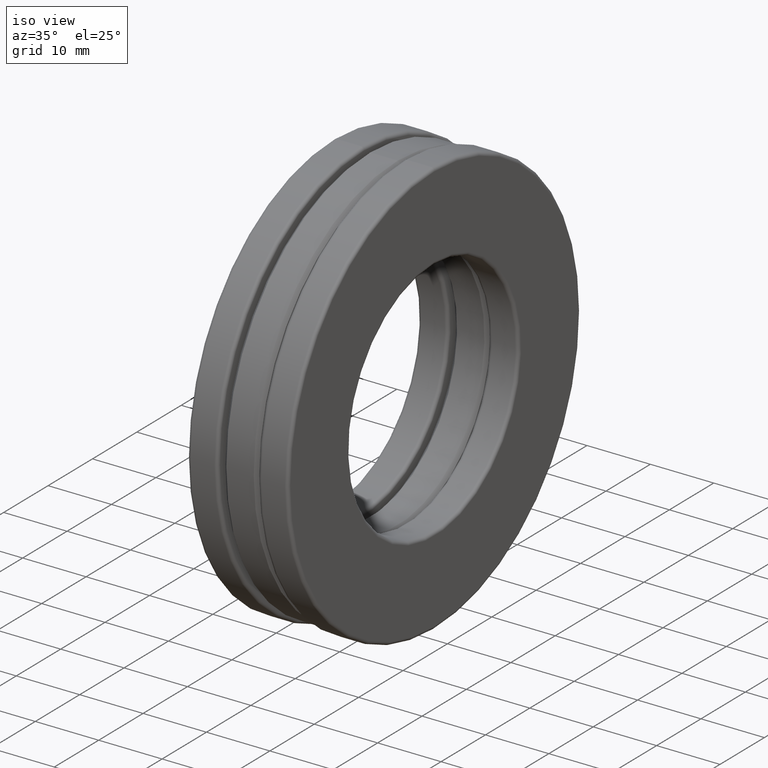
[diagram: clean part render]
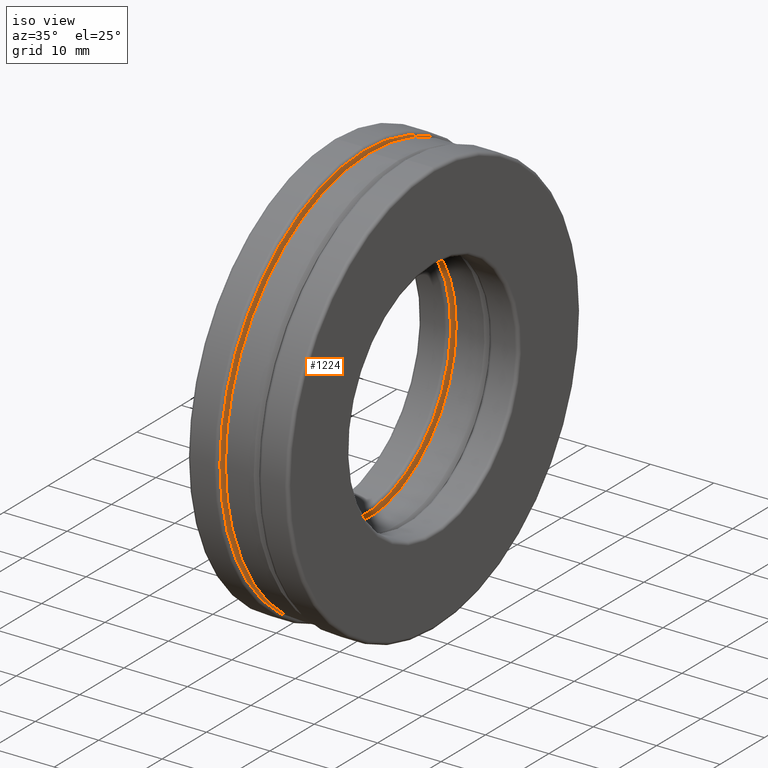
[diagram: same view with one face highlighted and labeled with its STEP entity id]
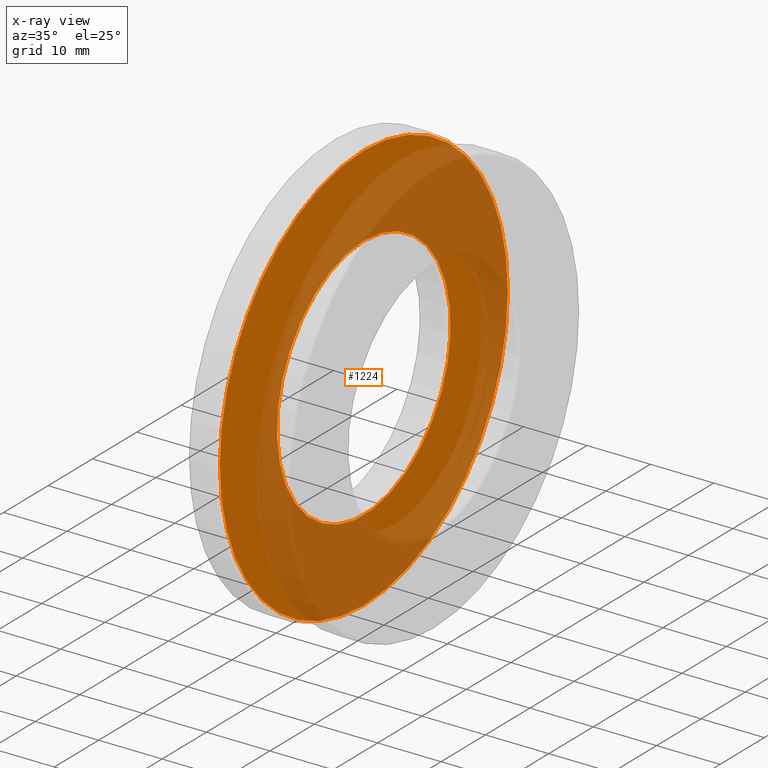
[diagram: x-ray of the same camera — body ghosted, the highlighted face saturated]
A machine part, iso view. The second image highlights one B-rep face of the part: STEP entity #1224.
The next image is the same camera in x-ray: the body ghosted, the highlighted face saturated — about 58% of this face is hidden behind the body in this view.
In plain terms, the highlighted planar face has unit normal (1, 0, 0).
Its self-contained STEP definition (entity closure, byte-faithful):
#43 = VERTEX_POINT ( 'NONE', #279 ) ;
#69 = ORIENTED_EDGE ( 'NONE', *, *, #1290, .T. ) ;
#117 = DIRECTION ( 'NONE',  ( 1.000000000000000000, 0.0000000000000000000, 0.0000000000000000000 ) ) ;
#122 = CIRCLE ( 'NONE', #718, 1.276875000000000000 ) ;
#197 = CARTESIAN_POINT ( 'NONE',  ( -0.1250000000000000800, 0.0000000000000000000, 0.0000000000000000000 ) ) ;
#213 = CIRCLE ( 'NONE', #1154, 0.7700000000000001300 ) ;
#243 = CARTESIAN_POINT ( 'NONE',  ( -0.1250000000000000600, -8.421233026092058600E-018, 0.0000000000000000000 ) ) ;
#279 = CARTESIAN_POINT ( 'NONE',  ( -0.1250000000000000800, 0.0000000000000000000, 1.276875000000000000 ) ) ;
#494 = ORIENTED_EDGE ( 'NONE', *, *, #838, .F. ) ;
#563 = PLANE ( 'NONE',  #576 ) ;
#576 = AXIS2_PLACEMENT_3D ( 'NONE', #243, #117, #579 ) ;
#579 = DIRECTION ( 'NONE',  ( 0.0000000000000000000, 0.0000000000000000000, -1.000000000000000000 ) ) ;
#718 = AXIS2_PLACEMENT_3D ( 'NONE', #197, #1325, #1124 ) ;
#828 = FACE_BOUND ( 'NONE', #1395, .T. ) ;
#838 = EDGE_CURVE ( 'NONE', #43, #43, #122, .T. ) ;
#923 = DIRECTION ( 'NONE',  ( 0.0000000000000000000, 0.0000000000000000000, 1.000000000000000000 ) ) ;
#970 = VERTEX_POINT ( 'NONE', #1287 ) ;
#1048 = CARTESIAN_POINT ( 'NONE',  ( -0.1250000000000000600, 0.0000000000000000000, 0.0000000000000000000 ) ) ;
#1093 = FACE_OUTER_BOUND ( 'NONE', #1343, .T. ) ;
#1124 = DIRECTION ( 'NONE',  ( 0.0000000000000000000, 0.0000000000000000000, 1.000000000000000000 ) ) ;
#1154 = AXIS2_PLACEMENT_3D ( 'NONE', #1048, #1387, #923 ) ;
#1224 = ADVANCED_FACE ( 'NONE', ( #828, #1093 ), #563, .T. ) ;
#1287 = CARTESIAN_POINT ( 'NONE',  ( -0.1250000000000000600, 0.0000000000000000000, 0.7700000000000001300 ) ) ;
#1290 = EDGE_CURVE ( 'NONE', #970, #970, #213, .T. ) ;
#1325 = DIRECTION ( 'NONE',  ( -1.000000000000000000, -0.0000000000000000000, -0.0000000000000000000 ) ) ;
#1343 = EDGE_LOOP ( 'NONE', ( #494 ) ) ;
#1387 = DIRECTION ( 'NONE',  ( -1.000000000000000000, -0.0000000000000000000, -0.0000000000000000000 ) ) ;
#1395 = EDGE_LOOP ( 'NONE', ( #69 ) ) ;